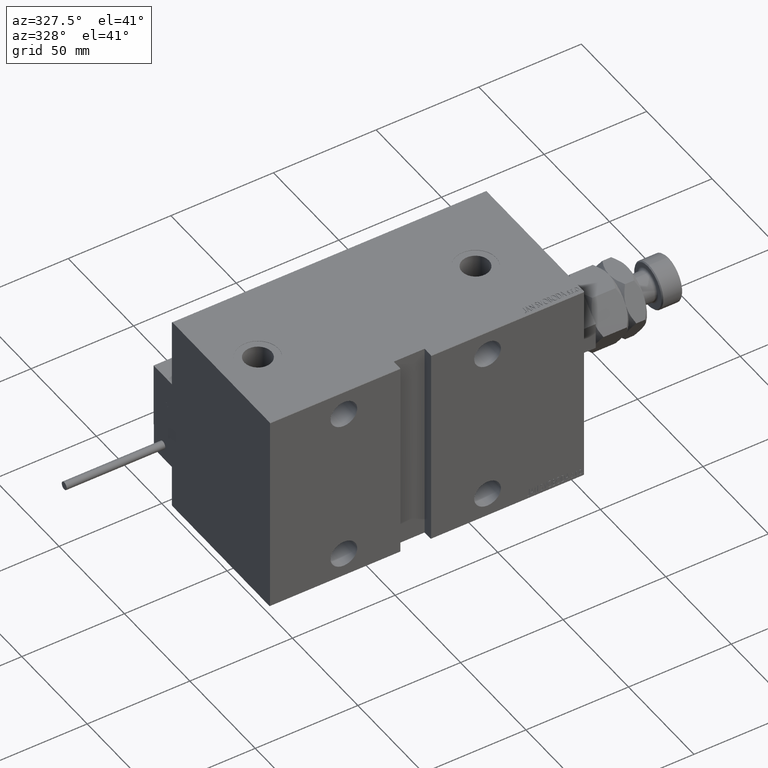
[diagram: clean part render]
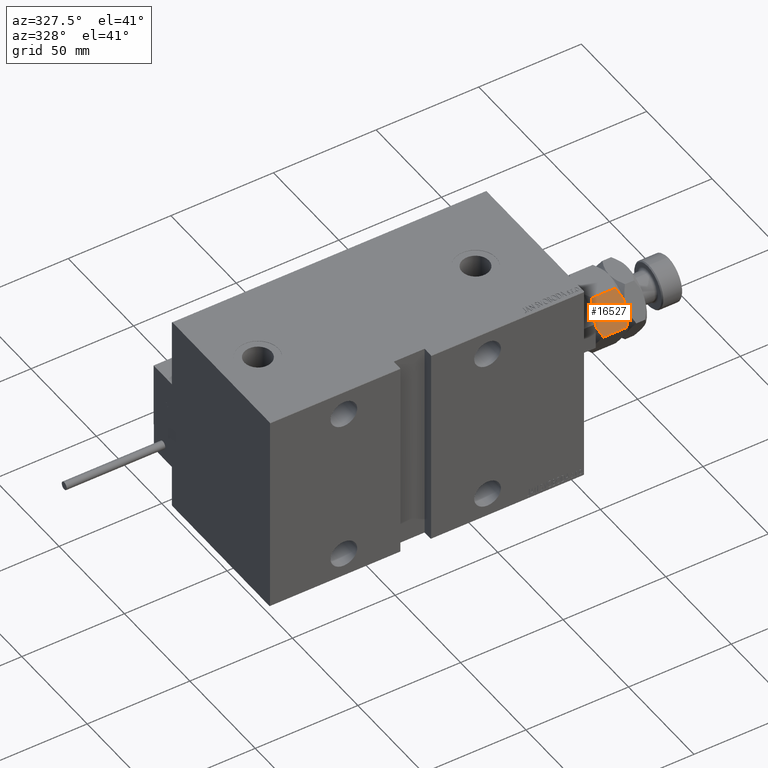
[diagram: same view with one face highlighted and labeled with its STEP entity id]
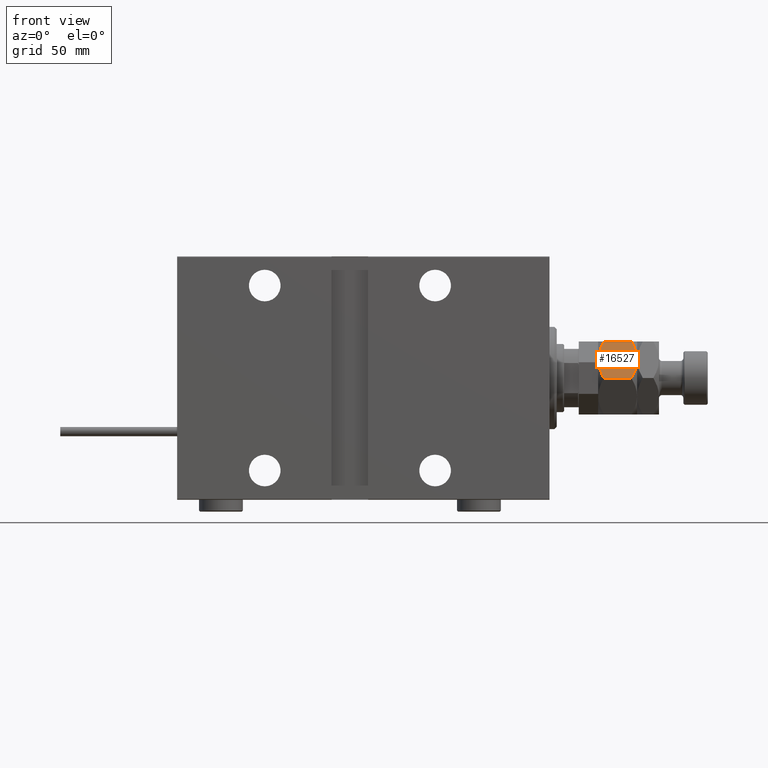
[diagram: same view with one face highlighted and labeled with its STEP entity id]
A machine part, auxiliary view. The second image highlights one B-rep face of the part: STEP entity #16527.
A second angle (front view) of the same face is appended — the face is thin or edge-on in the first view.
In plain terms, the highlighted planar face has unit normal (-0, 0.866, -0.5).
Its self-contained STEP definition (entity closure, byte-faithful):
#1306 = EDGE_CURVE ( 'NONE', #39257, #11339, #43342, .T. ) ;
#2931 = CARTESIAN_POINT ( 'NONE',  ( -14.99999999999999645, -8.660254037844389075, 2.320508075688762606 ) ) ;
#3935 = CARTESIAN_POINT ( 'NONE',  ( -2.383929548160354628, -15.94414570932928576, 14.93952096862912526 ) ) ;
#5897 = CARTESIAN_POINT ( 'NONE',  ( -2.378834511187505996, -15.94708733029708725, 1.064486067744005560 ) ) ;
#6951 = CARTESIAN_POINT ( 'NONE',  ( -12.61607045183964715, -10.03661640420386902, 1.060479031370877845 ) ) ;
#8343 = ORIENTED_EDGE ( 'NONE', *, *, #48249, .F. ) ;
#8716 = CARTESIAN_POINT ( 'NONE',  ( -14.99999999999999645, -8.660254037844389075, 16.00000000000000000 ) ) ;
#9023 = CARTESIAN_POINT ( 'NONE',  ( -14.99999999999999645, -8.660254037844389075, 13.67949192431124139 ) ) ;
#9377 = CARTESIAN_POINT ( 'NONE',  ( -7.500000000000000000, -12.99038105676658006, 0.000000000000000000 ) ) ;
#9550 = CARTESIAN_POINT ( 'NONE',  ( -8.156876182308250733, -12.61113341608665905, 16.00000000000000355 ) ) ;
#11339 = VERTEX_POINT ( 'NONE', #49565 ) ;
#13317 = ORIENTED_EDGE ( 'NONE', *, *, #44388, .T. ) ;
#13941 = CARTESIAN_POINT ( 'NONE',  ( -4.881674457977378090, -14.50207201327941320, 0.2838026619462943323 ) ) ;
#15007 = CARTESIAN_POINT ( 'NONE',  ( -13.82525345580783060, -9.338494271363318333, 1.642267842169780279 ) ) ;
#16527 = ADVANCED_FACE ( 'NONE', ( #46232 ), #45180, .F. ) ;
#17690 = CARTESIAN_POINT ( 'NONE',  ( -6.843123817691746602, -13.36962869744650284, -3.760826285809093999E-16 ) ) ;
#17953 = CARTESIAN_POINT ( 'NONE',  ( -6.176419610670697224, -13.75455055083996214, 0.05953537397470286957 ) ) ;
#18296 = CARTESIAN_POINT ( 'NONE',  ( -14.99999999999999645, -8.660254037844389075, 13.67949192431124139 ) ) ;
#18393 = DIRECTION ( 'NONE',  ( -0.000000000000000000, -0.000000000000000000, -1.000000000000000000 ) ) ;
#19910 = B_SPLINE_CURVE_WITH_KNOTS ( 'NONE', 3,
 ( #25964, #42334, #39642, #6951, #15007, #2931 ),
 .UNSPECIFIED., .F., .F.,
 ( 4, 2, 4 ),
 ( 0.008977392552884445528, 0.01343452311421656012, 0.01789165367554867297 ),
 .UNSPECIFIED. ) ;
#22299 = AXIS2_PLACEMENT_3D ( 'NONE', #8716, #37109, #41149 ) ;
#22488 = CARTESIAN_POINT ( 'NONE',  ( -7.500000000000000000, -12.99038105676658006, 0.000000000000000000 ) ) ;
#22888 = VERTEX_POINT ( 'NONE', #29970 ) ;
#24732 = VERTEX_POINT ( 'NONE', #29882 ) ;
#24788 = ORIENTED_EDGE ( 'NONE', *, *, #31759, .F. ) ;
#25964 = CARTESIAN_POINT ( 'NONE',  ( -7.500000000000000000, -12.99038105676658006, 0.000000000000000000 ) ) ;
#26119 = CARTESIAN_POINT ( 'NONE',  ( -7.500000000000001776, -12.99038105676658361, 16.00000000000000000 ) ) ;
#26331 = DIRECTION ( 'NONE',  ( -0.000000000000000000, -0.000000000000000000, -1.000000000000000000 ) ) ;
#26482 = ORIENTED_EDGE ( 'NONE', *, *, #1306, .F. ) ;
#26484 = VECTOR ( 'NONE', #26331, 1000.000000000000000 ) ;
#26927 = EDGE_CURVE ( 'NONE', #48260, #39257, #49107, .T. ) ;
#28033 = ORIENTED_EDGE ( 'NONE', *, *, #28974, .F. ) ;
#28300 = CARTESIAN_POINT ( 'NONE',  ( -6.195449321423087241, -13.74356374221446586, 16.00000000000001066 ) ) ;
#28859 = CARTESIAN_POINT ( 'NONE',  ( -7.500000000000001776, -12.99038105676658361, 16.00000000000000000 ) ) ;
#28886 = ORIENTED_EDGE ( 'NONE', *, *, #26927, .F. ) ;
#28974 = EDGE_CURVE ( 'NONE', #22888, #31711, #30361, .T. ) ;
#29882 = CARTESIAN_POINT ( 'NONE',  ( -14.99999999999999645, -8.660254037844389075, 2.320508075688762606 ) ) ;
#29898 = CARTESIAN_POINT ( 'NONE',  ( -12.62116548881249223, -10.03367478323606221, 14.93551393225599533 ) ) ;
#29970 = CARTESIAN_POINT ( 'NONE',  ( -2.796947266322166691E-15, -17.32050807568877104, 2.320508075688761718 ) ) ;
#30361 = B_SPLINE_CURVE_WITH_KNOTS ( 'NONE', 3,
 ( #39121, #34558, #5897, #38584, #13941, #17953, #17690, #9377 ),
 .UNSPECIFIED., .F., .F.,
 ( 4, 2, 2, 4 ),
 ( 2.544309033648719118E-07, 0.004488823491893905240, 0.006733108022389175384, 0.008977392552884445528 ),
 .UNSPECIFIED. ) ;
#30448 = CARTESIAN_POINT ( 'NONE',  ( -14.99999999999999645, -8.660254037844389075, 16.00000000000000000 ) ) ;
#31711 = VERTEX_POINT ( 'NONE', #22488 ) ;
#31759 = EDGE_CURVE ( 'NONE', #31711, #24732, #19910, .T. ) ;
#33137 = CARTESIAN_POINT ( 'NONE',  ( -8.823580389329300999, -12.22621156269320331, 15.94046462602529957 ) ) ;
#33542 = VECTOR ( 'NONE', #18393, 1000.000000000000000 ) ;
#34558 = CARTESIAN_POINT ( 'NONE',  ( -1.176108425306644722, -16.64148155974179488, 1.641481559741788665 ) ) ;
#35084 = EDGE_LOOP ( 'NONE', ( #28033, #8343, #26482, #28886, #13317, #24788 ) ) ;
#36615 = CARTESIAN_POINT ( 'NONE',  ( -1.174746544192163844, -16.64226784216984711, 14.35773215783022572 ) ) ;
#37109 = DIRECTION ( 'NONE',  ( 0.5000000000000000000, 0.8660254037844387076, -0.000000000000000000 ) ) ;
#38584 = CARTESIAN_POINT ( 'NONE',  ( -4.247772349543487813, -14.86805556622358893, 0.4475714085130264031 ) ) ;
#39121 = CARTESIAN_POINT ( 'NONE',  ( -2.796947266322166691E-15, -17.32050807568877104, 2.320508075688761718 ) ) ;
#39257 = VERTEX_POINT ( 'NONE', #26119 ) ;
#39642 = CARTESIAN_POINT ( 'NONE',  ( -10.08691881950258740, -11.49682277995505331, 0.2303299219392165864 ) ) ;
#41149 = DIRECTION ( 'NONE',  ( -0.8660254037844385966, 0.4999999999999999445, 0.000000000000000000 ) ) ;
#41719 = CARTESIAN_POINT ( 'NONE',  ( -10.75222765045651308, -11.11270654730956409, 15.55242859148697576 ) ) ;
#42334 = CARTESIAN_POINT ( 'NONE',  ( -8.804550678576912759, -12.23719837131869248, -4.878909776184767981E-16 ) ) ;
#43342 = B_SPLINE_CURVE_WITH_KNOTS ( 'NONE', 3,
 ( #48964, #28300, #44673, #3935, #36615, #52996 ),
 .UNSPECIFIED., .F., .F.,
 ( 4, 2, 4 ),
 ( 0.008977392552884447263, 0.01343452311421656359, 0.01789165367554867991 ),
 .UNSPECIFIED. ) ;
#44388 = EDGE_CURVE ( 'NONE', #48260, #24732, #50324, .T. ) ;
#44673 = CARTESIAN_POINT ( 'NONE',  ( -4.913081180497412603, -14.48393933357810504, 15.76967007806078946 ) ) ;
#45180 = PLANE ( 'NONE',  #22299 ) ;
#46232 = FACE_OUTER_BOUND ( 'NONE', #35084, .T. ) ;
#46275 = CARTESIAN_POINT ( 'NONE',  ( -10.11832554202262102, -11.47869010025374692, 15.71619733805371411 ) ) ;
#46987 = LINE ( 'NONE', #51300, #26484 ) ;
#48249 = EDGE_CURVE ( 'NONE', #11339, #22888, #46987, .T. ) ;
#48260 = VERTEX_POINT ( 'NONE', #18296 ) ;
#48964 = CARTESIAN_POINT ( 'NONE',  ( -7.500000000000001776, -12.99038105676658361, 16.00000000000000000 ) ) ;
#49107 = B_SPLINE_CURVE_WITH_KNOTS ( 'NONE', 3,
 ( #9023, #49520, #29898, #41719, #46275, #33137, #9550, #28859 ),
 .UNSPECIFIED., .F., .F.,
 ( 4, 2, 2, 4 ),
 ( 2.544309033641602453E-07, 0.004488823491893906108, 0.006733108022389176252, 0.008977392552884447263 ),
 .UNSPECIFIED. ) ;
#49520 = CARTESIAN_POINT ( 'NONE',  ( -13.82389157469335750, -9.339280553791368789, 14.35851844025821933 ) ) ;
#49565 = CARTESIAN_POINT ( 'NONE',  ( -3.416099238086855886E-15, -17.32050807568877104, 13.67949192431124317 ) ) ;
#50324 = LINE ( 'NONE', #30448, #33542 ) ;
#51300 = CARTESIAN_POINT ( 'NONE',  ( -3.035766082959412415E-15, -17.32050807568877104, 16.00000000000000000 ) ) ;
#52996 = CARTESIAN_POINT ( 'NONE',  ( -3.416099238086855886E-15, -17.32050807568877104, 13.67949192431124317 ) ) ;